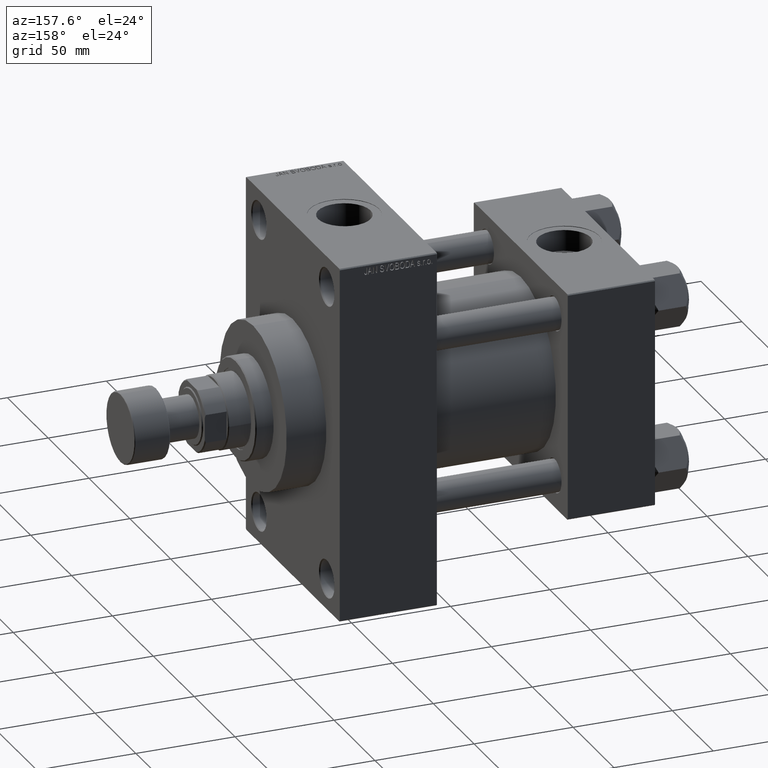
[diagram: clean part render]
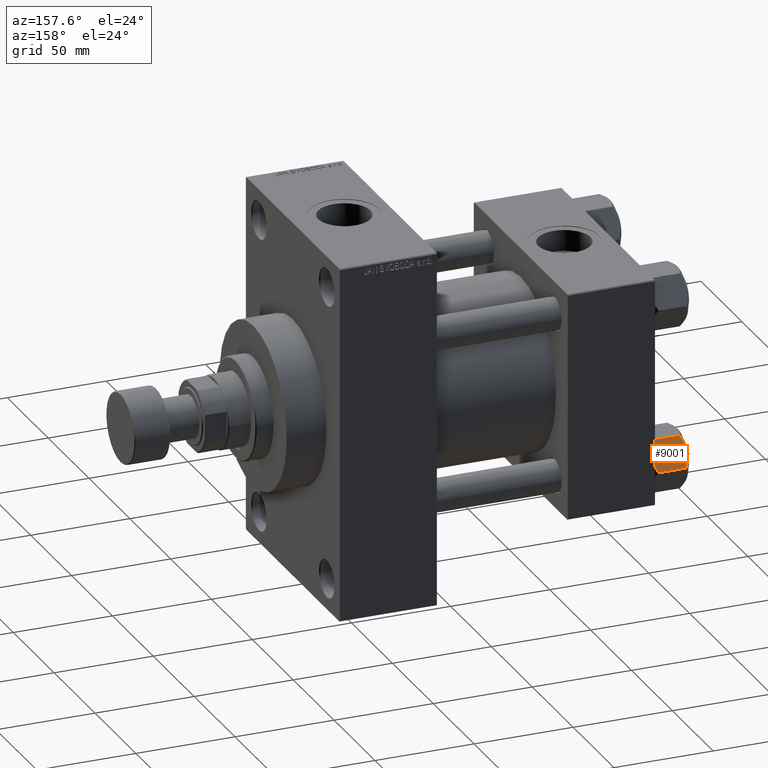
[diagram: same view with one face highlighted and labeled with its STEP entity id]
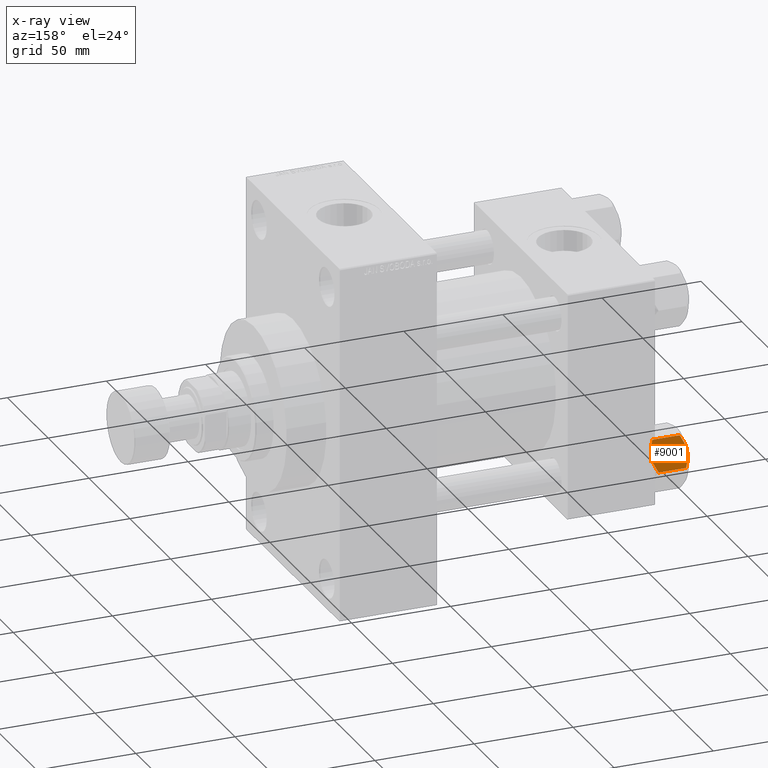
[diagram: x-ray of the same camera — body ghosted, the highlighted face saturated]
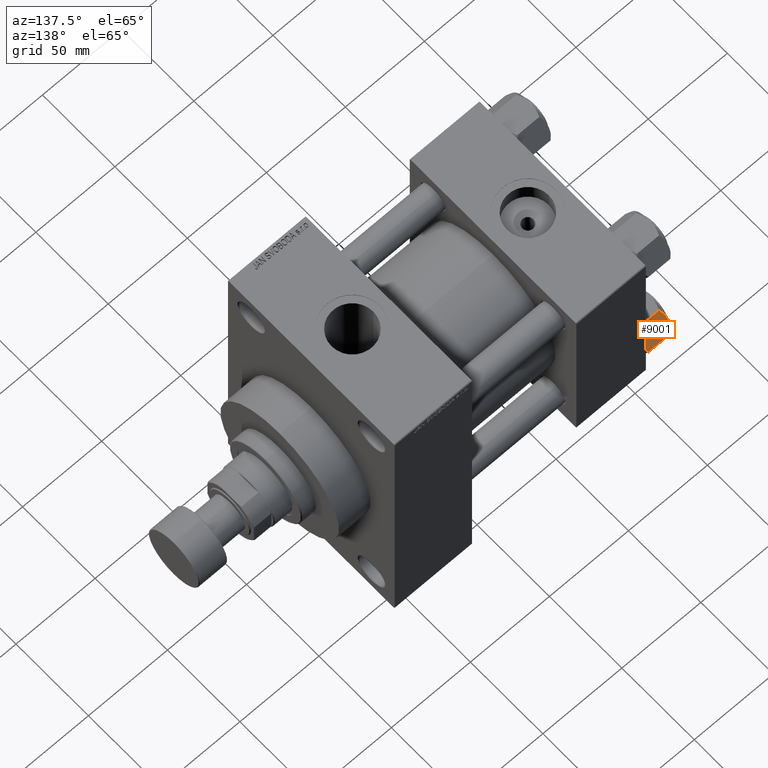
[diagram: same view with one face highlighted and labeled with its STEP entity id]
A machine part, auxiliary view. The second image highlights one B-rep face of the part: STEP entity #9001.
The next image is the same camera in x-ray: the body ghosted, the highlighted face saturated — about 0% of this face is hidden behind the body in this view.
A second angle (auxiliary view) of the same face is appended — the face is thin or edge-on in the first view.
In plain terms, the highlighted planar face has unit normal (0, -0.866, -0.5).
Its self-contained STEP definition (entity closure, byte-faithful):
#37 = CARTESIAN_POINT ( 'NONE',  ( -11.71500000000000341, 6.763658403556467746, -18.00000000000000000 ) ) ;
#40 = CARTESIAN_POINT ( 'NONE',  ( -7.809999999999996945, 13.52731680711293727, -18.00000000000000000 ) ) ;
#292 = VERTEX_POINT ( 'NONE', #10431 ) ;
#1055 = CARTESIAN_POINT ( 'NONE',  ( -11.71500000000000341, 6.763658403556467746, 0.000000000000000000 ) ) ;
#1175 = PLANE ( 'NONE',  #39643 ) ;
#1961 = ORIENTED_EDGE ( 'NONE', *, *, #40165, .F. ) ;
#2128 = CARTESIAN_POINT ( 'NONE',  ( -15.61999999999999567, 8.023367828467702033E-15, -16.00000000000000000 ) ) ;
#2636 = CARTESIAN_POINT ( 'NONE',  ( -12.38621571200405569, 5.601078687526927169, -17.94910618364698252 ) ) ;
#3680 = EDGE_CURVE ( 'NONE', #45254, #30828, #21040, .T. ) ;
#4039 = LINE ( 'NONE', #19605, #40216 ) ;
#4322 = CARTESIAN_POINT ( 'NONE',  ( -7.903528262322672582, 13.36532110482643354, -2.000000000000000000 ) ) ;
#5768 = CARTESIAN_POINT ( 'NONE',  ( -14.30591678195076177, 2.276058899034892224, -0.9473872146228117241 ) ) ;
#5800 = CARTESIAN_POINT ( 'NONE',  ( -14.31545111198821374, 2.259544954993889299, -17.08577173959730544 ) ) ;
#6608 = CARTESIAN_POINT ( 'NONE',  ( -9.124083218049239719, 11.25125790807804194, -17.05261278537718539 ) ) ;
#6961 = CARTESIAN_POINT ( 'NONE',  ( -15.52647173767732802, 0.1619957022864961793, -2.000000000000000000 ) ) ;
#7476 = ORIENTED_EDGE ( 'NONE', *, *, #44240, .F. ) ;
#8234 = DIRECTION ( 'NONE',  ( 0.8660254037844387076, -0.4999999999999999445, 0.000000000000000000 ) ) ;
#8262 = DIRECTION ( 'NONE',  ( -0.4999999999999999445, -0.8660254037844387076, 0.000000000000000000 ) ) ;
#9001 = ADVANCED_FACE ( 'NONE', ( #37929 ), #1175, .F. ) ;
#9422 = CARTESIAN_POINT ( 'NONE',  ( -12.37702203890362185, 5.617002596445053619, 4.300668617525835570E-15 ) ) ;
#10179 = CARTESIAN_POINT ( 'NONE',  ( -13.04337073483128329, 4.462852799541079385, -17.75691532989870325 ) ) ;
#10431 = CARTESIAN_POINT ( 'NONE',  ( -7.903528262322672582, 13.36532110482643354, -16.00000000000000000 ) ) ;
#11042 = EDGE_CURVE ( 'NONE', #41769, #21621, #18544, .T. ) ;
#11313 = LINE ( 'NONE', #11551, #29067 ) ;
#11486 = CARTESIAN_POINT ( 'NONE',  ( -15.52647173767732802, 0.1619957022864961793, -16.00000000000000000 ) ) ;
#11551 = CARTESIAN_POINT ( 'NONE',  ( -15.61999999999999567, 8.023367828467702033E-15, -18.00000000000000000 ) ) ;
#11630 = CARTESIAN_POINT ( 'NONE',  ( -8.502393313253749696, 12.32805640973648309, -1.411989271640067933 ) ) ;
#12386 = CARTESIAN_POINT ( 'NONE',  ( -7.903528262322672582, 13.36532110482643354, -2.000000000000000000 ) ) ;
#12457 = CARTESIAN_POINT ( 'NONE',  ( -15.61999999999999567, 8.023367828467702033E-15, -16.00000000000000000 ) ) ;
#13105 = CARTESIAN_POINT ( 'NONE',  ( -13.36540581434587516, 3.905071680002318857, -17.61639331488794369 ) ) ;
#13250 = CARTESIAN_POINT ( 'NONE',  ( -15.61999999999999567, 8.023367828467702033E-15, -1.999999999999998224 ) ) ;
#13915 = CARTESIAN_POINT ( 'NONE',  ( -7.903528262322672582, 13.36532110482643354, -16.00000000000000000 ) ) ;
#14034 = VECTOR ( 'NONE', #8262, 999.9999999999998863 ) ;
#14501 = EDGE_CURVE ( 'NONE', #21621, #38503, #42091, .T. ) ;
#15220 = ORIENTED_EDGE ( 'NONE', *, *, #22877, .T. ) ;
#15398 = DIRECTION ( 'NONE',  ( 0.4999999999999999445, 0.8660254037844387076, 0.000000000000000000 ) ) ;
#15427 = EDGE_CURVE ( 'NONE', #32911, #26974, #42860, .T. ) ;
#15769 = CARTESIAN_POINT ( 'NONE',  ( -10.38662926516871998, 9.064464007571849891, -0.2430846701012936983 ) ) ;
#17230 = CARTESIAN_POINT ( 'NONE',  ( -7.809999999999996945, 13.52731680711293727, -16.00000000000000000 ) ) ;
#17487 = CARTESIAN_POINT ( 'NONE',  ( -12.04818928091285457, 6.186557640478063114, -18.00000000000000711 ) ) ;
#18328 = ORIENTED_EDGE ( 'NONE', *, *, #30254, .F. ) ;
#18544 = LINE ( 'NONE', #40, #19467 ) ;
#19109 = ORIENTED_EDGE ( 'NONE', *, *, #30007, .F. ) ;
#19176 = CARTESIAN_POINT ( 'NONE',  ( -11.38181071908714515, 7.340759166634869715, 4.331726492258492723E-15 ) ) ;
#19201 = CARTESIAN_POINT ( 'NONE',  ( -15.61999999999999567, 8.023367828467702033E-15, -1.999999999999998224 ) ) ;
#19467 = VECTOR ( 'NONE', #25362, 1000.000000000000000 ) ;
#19605 = CARTESIAN_POINT ( 'NONE',  ( -15.61999999999999567, 8.023367828467702033E-15, -16.00000000000000000 ) ) ;
#19766 = LINE ( 'NONE', #12457, #25656 ) ;
#20018 = CARTESIAN_POINT ( 'NONE',  ( -11.71500000000000341, 6.763658403556467746, -18.00000000000000000 ) ) ;
#20412 = CARTESIAN_POINT ( 'NONE',  ( -14.92760668674625713, 1.199260397376444409, -16.58801072835993295 ) ) ;
#20615 = CARTESIAN_POINT ( 'NONE',  ( -14.92394044919338825, 1.205610507090627781, -1.434462921875002683 ) ) ;
#20810 = VECTOR ( 'NONE', #36363, 999.9999999999998863 ) ;
#21040 = LINE ( 'NONE', #13250, #20810 ) ;
#21228 = CARTESIAN_POINT ( 'NONE',  ( -9.439480280627259745, 10.70497417113493022, -17.26828031537189290 ) ) ;
#21621 = VERTEX_POINT ( 'NONE', #41690 ) ;
#21675 = VERTEX_POINT ( 'NONE', #1055 ) ;
#21730 = ORIENTED_EDGE ( 'NONE', *, *, #3680, .F. ) ;
#22542 = DIRECTION ( 'NONE',  ( 0.4999999999999999445, 0.8660254037844387076, 0.000000000000000000 ) ) ;
#22877 = EDGE_CURVE ( 'NONE', #27775, #30828, #11313, .T. ) ;
#22880 = CARTESIAN_POINT ( 'NONE',  ( -15.61999999999999567, 8.023367828467702033E-15, -1.999999999999998224 ) ) ;
#24280 = CARTESIAN_POINT ( 'NONE',  ( -13.02784502466562522, 4.489744118371585380, -0.1971866459924509485 ) ) ;
#25362 = DIRECTION ( 'NONE',  ( -0.000000000000000000, -0.000000000000000000, 1.000000000000000000 ) ) ;
#25656 = VECTOR ( 'NONE', #15398, 999.9999999999998863 ) ;
#26398 = DIRECTION ( 'NONE',  ( -0.000000000000000000, -0.000000000000000000, 1.000000000000000000 ) ) ;
#26974 = VERTEX_POINT ( 'NONE', #20018 ) ;
#27223 = ORIENTED_EDGE ( 'NONE', *, *, #15427, .F. ) ;
#27775 = VERTEX_POINT ( 'NONE', #2128 ) ;
#28677 = CARTESIAN_POINT ( 'NONE',  ( -11.71500000000000341, 6.763658403556467746, -18.00000000000000000 ) ) ;
#28887 = CARTESIAN_POINT ( 'NONE',  ( -11.71500000000000341, 6.763658403556467746, 0.000000000000000000 ) ) ;
#29067 = VECTOR ( 'NONE', #26398, 1000.000000000000000 ) ;
#29736 = CARTESIAN_POINT ( 'NONE',  ( -11.05297796109637787, 7.910314210667880985, -18.00000000000000355 ) ) ;
#30007 = EDGE_CURVE ( 'NONE', #26974, #292, #37816, .T. ) ;
#30127 = CARTESIAN_POINT ( 'NONE',  ( -9.114548888011780647, 11.26777185211904353, -0.9142282604026925608 ) ) ;
#30217 = ORIENTED_EDGE ( 'NONE', *, *, #14501, .F. ) ;
#30254 = EDGE_CURVE ( 'NONE', #21675, #45254, #40745, .T. ) ;
#30606 = CARTESIAN_POINT ( 'NONE',  ( -11.04378428799594758, 7.926238119586002995, -0.05089381635301037932 ) ) ;
#30625 = DIRECTION ( 'NONE',  ( 0.4999999999999998890, 0.8660254037844385966, 0.000000000000000000 ) ) ;
#30828 = VERTEX_POINT ( 'NONE', #19201 ) ;
#32911 = VERTEX_POINT ( 'NONE', #11486 ) ;
#34016 = CARTESIAN_POINT ( 'NONE',  ( -11.71500000000000341, 6.763658403556467746, 0.000000000000000000 ) ) ;
#34255 = CARTESIAN_POINT ( 'NONE',  ( -10.06459418565412278, 9.622245127110613083, -0.3836066851120565890 ) ) ;
#34722 = EDGE_CURVE ( 'NONE', #27775, #32911, #4039, .T. ) ;
#35461 = CARTESIAN_POINT ( 'NONE',  ( -15.52647173767732802, 0.1619957022864961793, -2.000000000000000000 ) ) ;
#35980 = CARTESIAN_POINT ( 'NONE',  ( -15.52647173767732802, 0.1619957022864961793, -16.00000000000000000 ) ) ;
#36363 = DIRECTION ( 'NONE',  ( -0.4999999999999999445, -0.8660254037844387076, 0.000000000000000000 ) ) ;
#37816 = B_SPLINE_CURVE_WITH_KNOTS ( 'NONE', 3,
 ( #37, #29736, #44583, #21228, #6608, #47987, #47264, #13915 ),
 .UNSPECIFIED., .F., .F.,
 ( 4, 2, 2, 4 ),
 ( 0.007890825462474436100, 0.01181022244528555365, 0.01376992093669111156, 0.01572961942809666946 ),
 .UNSPECIFIED. ) ;
#37929 = FACE_OUTER_BOUND ( 'NONE', #46446, .T. ) ;
#38404 = CARTESIAN_POINT ( 'NONE',  ( -15.61999999999999567, 8.023367828467702033E-15, -18.00000000000000000 ) ) ;
#38503 = VERTEX_POINT ( 'NONE', #12386 ) ;
#39117 = CARTESIAN_POINT ( 'NONE',  ( -13.99051971937273997, 2.822342635978005276, -0.7317196846281108780 ) ) ;
#39643 = AXIS2_PLACEMENT_3D ( 'NONE', #38404, #8234, #30625 ) ;
#40165 = EDGE_CURVE ( 'NONE', #292, #41769, #19766, .T. ) ;
#40216 = VECTOR ( 'NONE', #22542, 999.9999999999998863 ) ;
#40745 = B_SPLINE_CURVE_WITH_KNOTS ( 'NONE', 3,
 ( #28887, #9422, #24280, #39117, #5768, #20615, #43733, #35461 ),
 .UNSPECIFIED., .F., .F.,
 ( 4, 2, 2, 4 ),
 ( 0.007890825462474429161, 0.01181022244528554845, 0.01376992093669110635, 0.01572961942809666600 ),
 .UNSPECIFIED. ) ;
#41690 = CARTESIAN_POINT ( 'NONE',  ( -7.809999999999996945, 13.52731680711293727, -1.999999999999998224 ) ) ;
#41769 = VERTEX_POINT ( 'NONE', #17230 ) ;
#42091 = LINE ( 'NONE', #22880, #14034 ) ;
#42860 = B_SPLINE_CURVE_WITH_KNOTS ( 'NONE', 3,
 ( #35980, #20412, #5800, #13105, #10179, #2636, #17487, #28677 ),
 .UNSPECIFIED., .F., .F.,
 ( 4, 2, 2, 4 ),
 ( 4.472842641907744530E-07, 0.003945636373369311792, 0.005918230917921873946, 0.007890825462474436100 ),
 .UNSPECIFIED. ) ;
#43733 = CARTESIAN_POINT ( 'NONE',  ( -15.22736220980736377, 0.6800686015852189792, -1.706311779141444385 ) ) ;
#43888 = ORIENTED_EDGE ( 'NONE', *, *, #34722, .F. ) ;
#44240 = EDGE_CURVE ( 'NONE', #38503, #21675, #47230, .T. ) ;
#44583 = CARTESIAN_POINT ( 'NONE',  ( -10.40215497533436917, 9.037572688741351001, -17.80281335400754017 ) ) ;
#45254 = VERTEX_POINT ( 'NONE', #6961 ) ;
#45805 = ORIENTED_EDGE ( 'NONE', *, *, #11042, .F. ) ;
#46446 = EDGE_LOOP ( 'NONE', ( #43888, #15220, #21730, #18328, #7476, #30217, #45805, #1961, #19109, #27223 ) ) ;
#47230 = B_SPLINE_CURVE_WITH_KNOTS ( 'NONE', 3,
 ( #4322, #11630, #30127, #34255, #15769, #30606, #19176, #34016 ),
 .UNSPECIFIED., .F., .F.,
 ( 4, 2, 2, 4 ),
 ( 4.472842641835287214E-07, 0.003945636373369305720, 0.005918230917921867007, 0.007890825462474429161 ),
 .UNSPECIFIED. ) ;
#47264 = CARTESIAN_POINT ( 'NONE',  ( -8.202637790192643052, 12.84724820552771263, -16.29368822085855584 ) ) ;
#47987 = CARTESIAN_POINT ( 'NONE',  ( -8.506059550806615022, 12.32170630002230638, -16.56553707812499354 ) ) ;